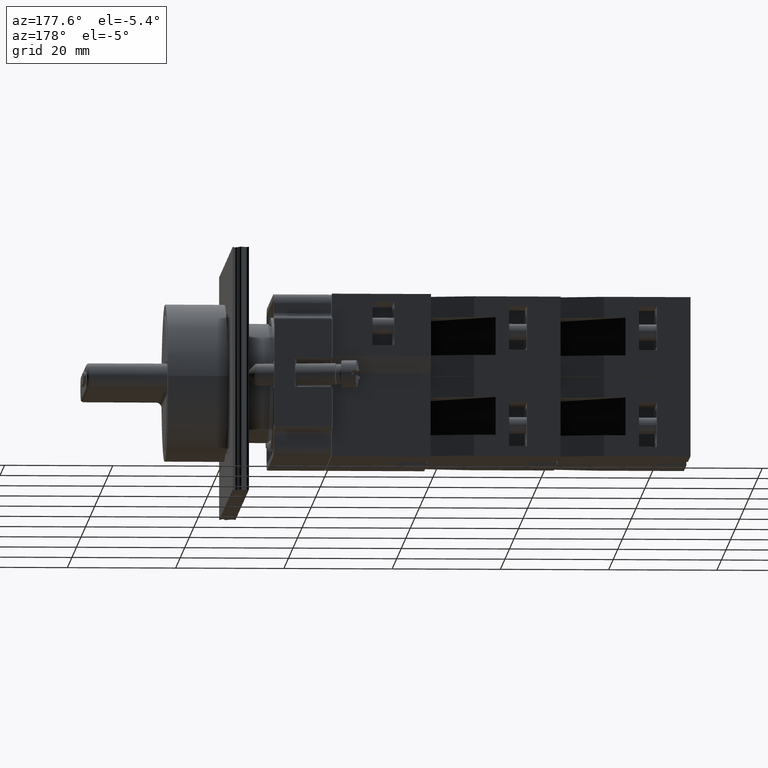
[diagram: clean part render]
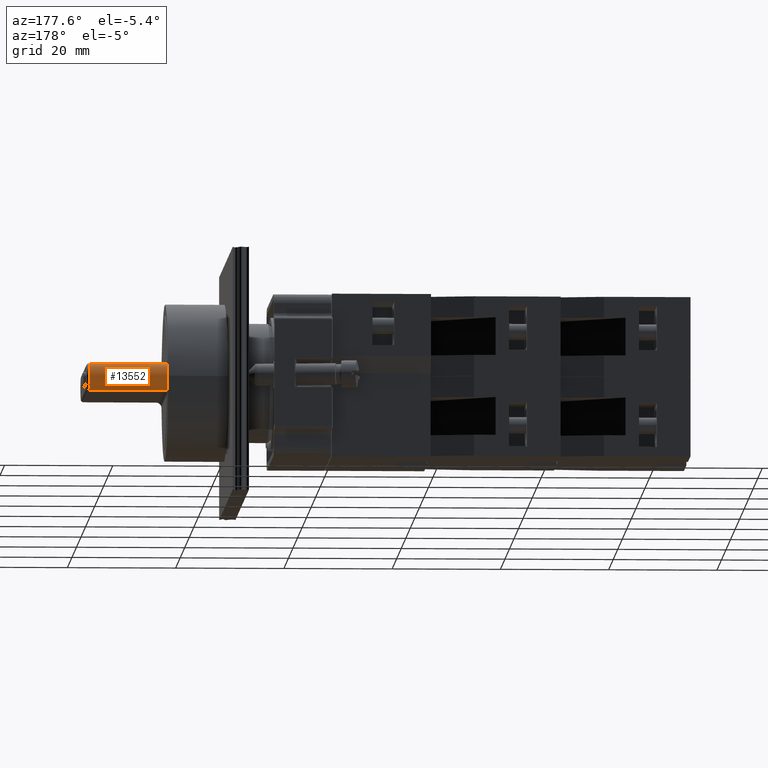
[diagram: same view with one face highlighted and labeled with its STEP entity id]
A machine part, auxiliary view. The second image highlights one B-rep face of the part: STEP entity #13552.
In plain terms, the highlighted cylindrical surface (edge-blend (fillet) strip) has radius 2.5 mm, axis along (1, 0, 0).
Its self-contained STEP definition (entity closure, byte-faithful):
#13360=CARTESIAN_POINT('',(17.379259947838936,11.673116139419635,-2.500000000000000));
#13361=VERTEX_POINT('',#13360);
#13402=CARTESIAN_POINT('',(17.379259947838936,11.673116139419635,2.500000000000002));
#13403=VERTEX_POINT('',#13402);
#13421=CARTESIAN_POINT('',(17.379259947838936,11.673116139419635,2.775558E-016));
#13422=DIRECTION('',(1.0,0.0,0.0));
#13423=DIRECTION('',(0.0,1.0,0.0));
#13424=AXIS2_PLACEMENT_3D('',#13421,#13422,#13423);
#13425=CIRCLE('',#13424,2.499999999999998);
#13426=EDGE_CURVE('',#13361,#13403,#13425,.T.);
#13487=CARTESIAN_POINT('',(2.979259947838931,11.673116139419635,2.775558E-016));
#13488=DIRECTION('',(1.0,0.0,0.0));
#13489=DIRECTION('',(0.0,0.0,1.0));
#13490=AXIS2_PLACEMENT_3D('',#13487,#13488,#13489);
#13491=CYLINDRICAL_SURFACE('',#13490,2.499999999999998);
#13492=ORIENTED_EDGE('',*,*,#13426,.F.);
#13493=CARTESIAN_POINT('',(3.979259947838931,11.673116139419635,-2.500000000000000));
#13494=VERTEX_POINT('',#13493);
#13495=CARTESIAN_POINT('',(3.979259947838931,11.673116139419635,-2.500000000000000));
#13496=DIRECTION('',(1.0,0.0,0.0));
#13497=VECTOR('',#13496,13.400000000000004);
#13498=LINE('',#13495,#13497);
#13499=EDGE_CURVE('',#13494,#13361,#13498,.T.);
#13500=ORIENTED_EDGE('',*,*,#13499,.F.);
#13501=CARTESIAN_POINT('',(3.979259947838931,12.075137416015378,-2.467464061169750));
#13502=VERTEX_POINT('',#13501);
#13503=CARTESIAN_POINT('',(3.979259947838931,11.673116139419635,2.775558E-016));
#13504=DIRECTION('',(-1.000000000000000,0.0,0.0));
#13505=DIRECTION('',(0.0,0.080667141799183,-0.996741095888973));
#13506=AXIS2_PLACEMENT_3D('',#13503,#13504,#13505);
#13507=CIRCLE('',#13506,2.499999999999997);
#13508=EDGE_CURVE('',#13502,#13494,#13507,.T.);
#13509=ORIENTED_EDGE('',*,*,#13508,.F.);
#13510=CARTESIAN_POINT('',(2.979259947838931,12.075137416015378,-2.467464061169748));
#13511=VERTEX_POINT('',#13510);
#13512=CARTESIAN_POINT('',(3.979259947838931,12.075137416015378,-2.467464061169750));
#13513=DIRECTION('',(-1.0,0.0,0.0));
#13514=VECTOR('',#13513,1.000000000000000);
#13515=LINE('',#13512,#13514);
#13516=EDGE_CURVE('',#13502,#13511,#13515,.T.);
#13517=ORIENTED_EDGE('',*,*,#13516,.T.);
#13518=CARTESIAN_POINT('',(2.979259947838931,12.075137416015378,2.467464061169753));
#13519=VERTEX_POINT('',#13518);
#13520=CARTESIAN_POINT('',(2.979259947838931,11.673116139419635,2.062485E-015));
#13521=DIRECTION('',(-1.0,0.0,0.0));
#13522=DIRECTION('',(0.0,-1.0,0.0));
#13523=AXIS2_PLACEMENT_3D('',#13520,#13521,#13522);
#13524=CIRCLE('',#13523,2.499999999999998);
#13525=EDGE_CURVE('',#13519,#13511,#13524,.T.);
#13526=ORIENTED_EDGE('',*,*,#13525,.F.);
#13527=CARTESIAN_POINT('',(3.979259947838931,12.075137416015378,2.467464061169751));
#13528=VERTEX_POINT('',#13527);
#13529=CARTESIAN_POINT('',(2.979259947838931,12.075137416015378,2.467464061169753));
#13530=DIRECTION('',(1.0,0.0,0.0));
#13531=VECTOR('',#13530,1.000000000000000);
#13532=LINE('',#13529,#13531);
#13533=EDGE_CURVE('',#13519,#13528,#13532,.T.);
#13534=ORIENTED_EDGE('',*,*,#13533,.T.);
#13535=CARTESIAN_POINT('',(3.979259947838931,11.673116139419635,2.500000000000002));
#13536=VERTEX_POINT('',#13535);
#13537=CARTESIAN_POINT('',(3.979259947838931,11.673116139419635,2.775558E-016));
#13538=DIRECTION('',(-1.000000000000000,0.0,0.0));
#13539=DIRECTION('',(0.0,0.080667141799183,0.996741095888973));
#13540=AXIS2_PLACEMENT_3D('',#13537,#13538,#13539);
#13541=CIRCLE('',#13540,2.499999999999997);
#13542=EDGE_CURVE('',#13536,#13528,#13541,.T.);
#13543=ORIENTED_EDGE('',*,*,#13542,.F.);
#13544=CARTESIAN_POINT('',(3.979259947838931,11.673116139419635,2.500000000000002));
#13545=DIRECTION('',(1.0,0.0,0.0));
#13546=VECTOR('',#13545,13.400000000000004);
#13547=LINE('',#13544,#13546);
#13548=EDGE_CURVE('',#13536,#13403,#13547,.T.);
#13549=ORIENTED_EDGE('',*,*,#13548,.T.);
#13550=EDGE_LOOP('',(#13492,#13500,#13509,#13517,#13526,#13534,#13543,#13549));
#13551=FACE_OUTER_BOUND('',#13550,.T.);
#13552=ADVANCED_FACE('',(#13551),#13491,.T.);